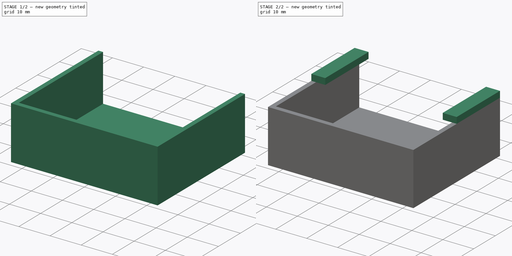
[diagram: build sequence overview — one tinted view per stage of 2, left to right]
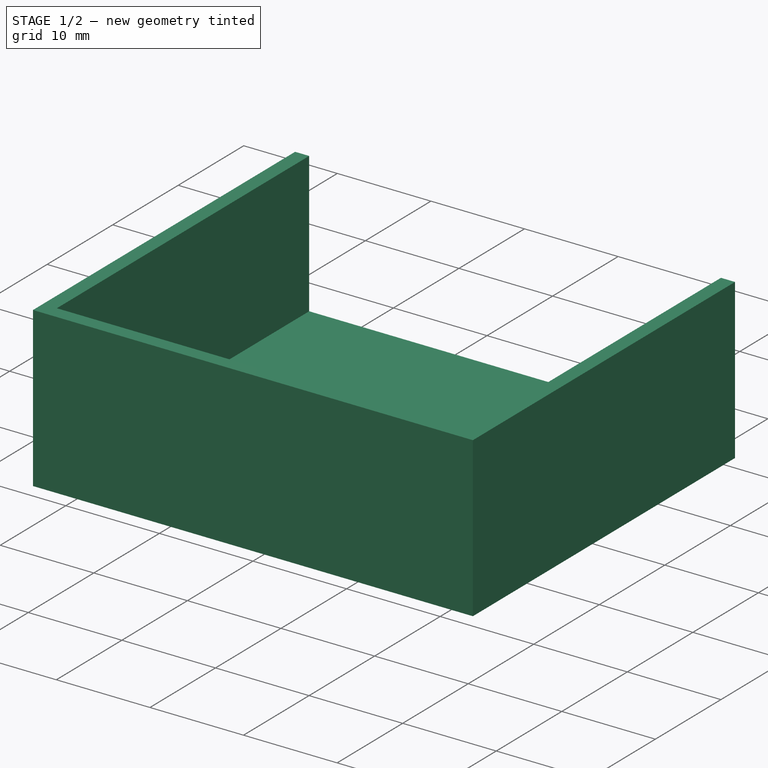
[diagram: stage 1 of 2 — iso view after this stage's code; geometry added in this stage tinted green]
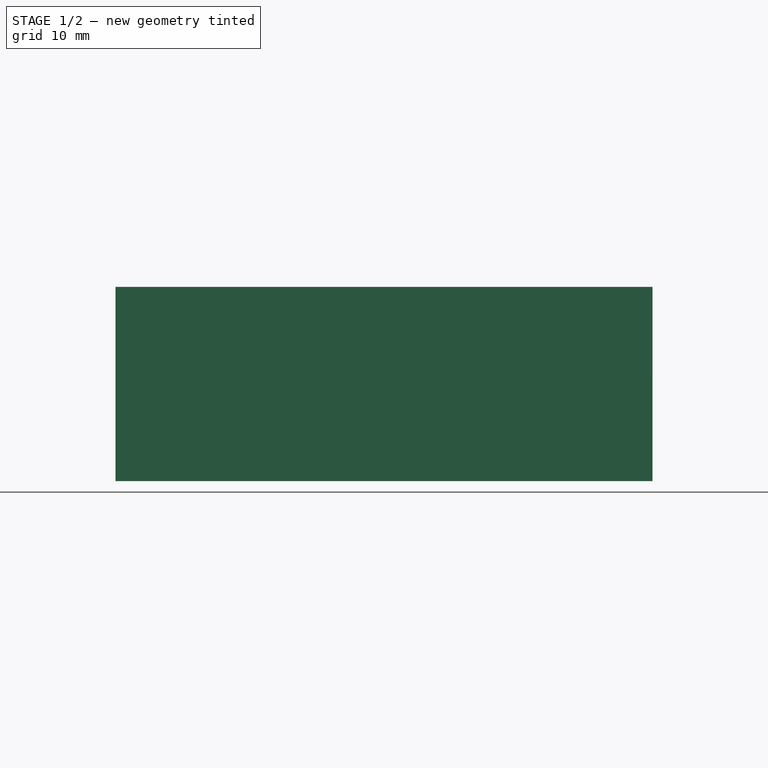
[diagram: stage 1 of 2 — front view after this stage's code; geometry added in this stage tinted green]
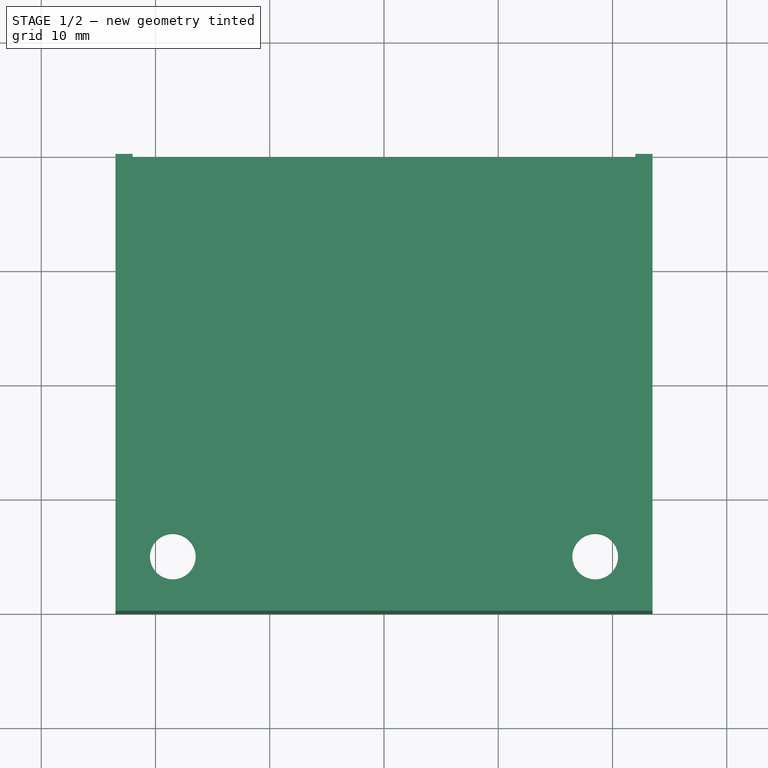
[diagram: stage 1 of 2 — top view after this stage's code; geometry added in this stage tinted green]
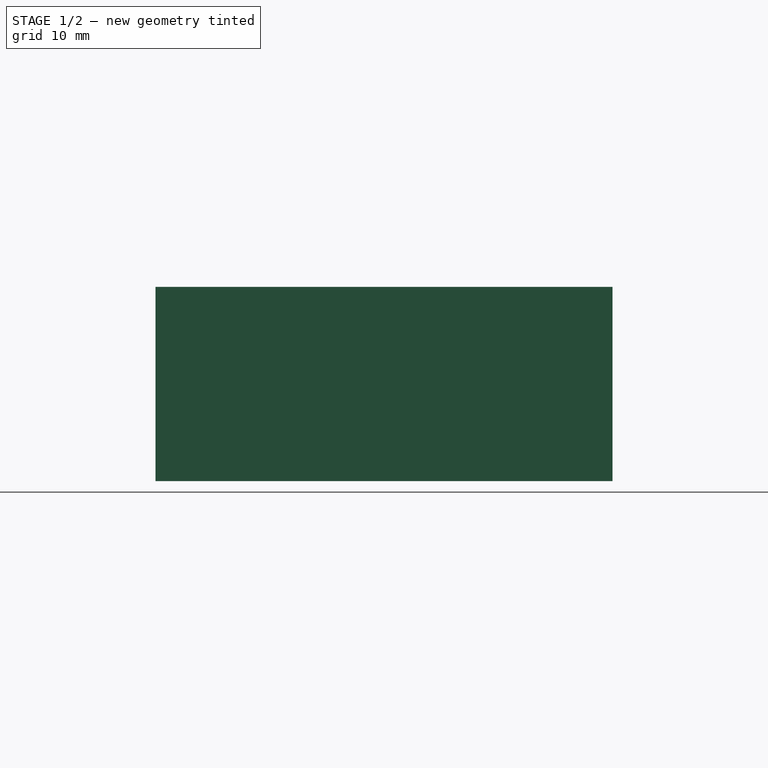
[diagram: stage 1 of 2 — right view after this stage's code; geometry added in this stage tinted green]
FCSTD DOCUMENT  (FreeCAD 0.20R29603 (Git))
Label: shelly mount
License: All rights reserved
LicenseURL: http://en.wikipedia.org/wiki/All_rights_reserved
objects: Sketcher::SketchObject×3, PartDesign::Pad×3, PartDesign::Body×1
note: 10 computed .brp shape members not serialized (recipe doc carries the construction recipe); baked Part::Feature solids carry a one-line shape summary decoded from their .brp

FEATURE [Sketcher::SketchObject] Sketch  label="Baseplate"
  FullyConstrained = true
  sketch-geometry (16):
    g0: LineSegment StartX=-23.5 StartY=20 StartZ=0 EndX=23.5 EndY=20 EndZ=0
    g1: LineSegment StartX=23.5 StartY=20 StartZ=0 EndX=23.5 EndY=-20 EndZ=0
    g2: LineSegment StartX=23.5 StartY=-20 StartZ=0 EndX=-23.5 EndY=-20 EndZ=0
    g3: LineSegment StartX=-23.5 StartY=-20 StartZ=0 EndX=-23.5 EndY=20 EndZ=0
    g4: LineSegment StartX=-22 StartY=18.5 StartZ=0 EndX=22 EndY=18.5 EndZ=0
    g5: LineSegment StartX=22 StartY=18.5 StartZ=0 EndX=22 EndY=-18.5 EndZ=0
    g6: LineSegment StartX=22 StartY=-18.5 StartZ=0 EndX=-22 EndY=-18.5 EndZ=0
    g7: LineSegment StartX=-22 StartY=-18.5 StartZ=0 EndX=-22 EndY=18.5 EndZ=0
    g8: GeomPoint X=-10 Y=-18.5 Z=0
    g9: GeomPoint X=-22 Y=-6.5 Z=0
    g10: LineSegment StartX=-22 StartY=-6.5 StartZ=0 EndX=-10 EndY=-18.5 EndZ=0
    g11: LineSegment StartX=-22 StartY=-18.5 StartZ=0 EndX=-16 EndY=-12.5 EndZ=0
    g12: Circle CenterX=-18.4853 CenterY=-14.9853 CenterZ=0 NormalX=0 NormalY=0 NormalZ=1 AngleXU=0 Radius=3.51472
    g13: Circle CenterX=18.4853 CenterY=-14.9853 CenterZ=0 NormalX=0 NormalY=0 NormalZ=1 AngleXU=0 Radius=3.51472
    g14: Circle CenterX=-18.4853 CenterY=-14.9853 CenterZ=0 NormalX=0 NormalY=0 NormalZ=1 AngleXU=0 Radius=2
    g15: Circle CenterX=18.4853 CenterY=-14.9853 CenterZ=0 NormalX=0 NormalY=0 NormalZ=1 AngleXU=0 Radius=2
  constraints (38):
    c: Coincident(g0,g1)
    c: Coincident(g1,g2)
    c: Coincident(g2,g3)
    c: Coincident(g3,g0)
    c: Horizontal(g2)
    c: Vertical(g1)
    c: Symmetric(g0,g0,g-2)
    c: DistanceX(g0,g0) = 47
    c: DistanceY(g2,g0) = 40
    c: Symmetric(g0,g2,g-1)
    c: Coincident(g4,g5)
    c: Coincident(g5,g6)
    c: Coincident(g6,g7)
    c: Coincident(g7,g4)
    c: Horizontal(g6)
    c: Vertical(g5)
    c: DistanceX(g0,g4) = 1.5
    c: DistanceY(g4,g0) = 1.5
    c: Symmetric(g6,g4,g-1)
    c: Symmetric(g4,g4,g-2)
    c: PointOnObject(g8,g6)
    c: PointOnObject(g9,g7)
    c: Coincident(g10,g9)
    c: Coincident(g10,g8)
    c: Coincident(g11,g6)
    c: PointOnObject(g11,g10)
    c: Angle(g6,g11) = 0.785398
    c: Tangent(g10,g12)
    c: Tangent(g12,g7)
    c: Tangent(g12,g6)
    c: Symmetric(g12,g13,g-2)
    c: Equal(g12,g13)
    c: DistanceY(g9,g4) = 25
    c: DistanceX(g8,g-1) = 10
    c: Coincident(g14,g12)
    c: Diameter(g14) = 4
    c: Coincident(g15,g13)
    c: Equal(g14,g15)
FEATURE [PartDesign::Pad] Pad  label="Baseplate001"
  Direction = (0,0,1)
  Length = 2
  Length2 = 10
  Profile = -> Sketch
  ReferenceAxis = -> Sketch [N_Axis]
  Type = 0
FEATURE [Sketcher::SketchObject] Sketch001  label="walls"
  ExternalGeometry = -> [Pad]
  FullyConstrained = true
  MapMode = 5
  Placement = pos=(0,0,2) rot=(0,0,1;0rad)
  Support = -> [Pad]
  sketch-geometry (17):
    g0: LineSegment StartX=-23.5 StartY=-20 StartZ=0 EndX=23.5 EndY=-20 EndZ=0
    g1: LineSegment StartX=23.5 StartY=-20 StartZ=0 EndX=23.5 EndY=-18.5 EndZ=0
    g2: LineSegment StartX=23.5 StartY=-18.5 StartZ=0 EndX=-23.5 EndY=-18.5 EndZ=0
    g3: LineSegment StartX=-23.5 StartY=-18.5 StartZ=0 EndX=-23.5 EndY=-20 EndZ=0
    g4: LineSegment StartX=-23.5 StartY=-20 StartZ=0 EndX=-22 EndY=-20 EndZ=0
    g5: LineSegment StartX=-22 StartY=-20 StartZ=0 EndX=-22 EndY=20 EndZ=0
    g6: LineSegment StartX=-22 StartY=20 StartZ=0 EndX=-23.5 EndY=20 EndZ=0
    g7: LineSegment StartX=-23.5 StartY=20 StartZ=0 EndX=-23.5 EndY=-20 EndZ=0
    g8: LineSegment StartX=23.5 StartY=-20 StartZ=0 EndX=22 EndY=-20 EndZ=0
    g9: LineSegment StartX=22 StartY=-20 StartZ=0 EndX=22 EndY=20 EndZ=0
    g10: LineSegment StartX=22 StartY=20 StartZ=0 EndX=23.5 EndY=20 EndZ=0
    g11: LineSegment StartX=23.5 StartY=20 StartZ=0 EndX=23.5 EndY=-20 EndZ=0
    g12: GeomPoint X=-22 Y=-18.5 Z=0
    g13: GeomPoint X=22 Y=-18.5 Z=0
    g14: LineSegment StartX=22 StartY=20 StartZ=0 EndX=22 EndY=-18.5 EndZ=0
    g15: LineSegment StartX=22 StartY=-18.5 StartZ=0 EndX=-22 EndY=-18.5 EndZ=0
    g16: LineSegment StartX=-22 StartY=-18.5 StartZ=0 EndX=-22 EndY=20 EndZ=0
  constraints (43):
    c: Coincident(g0,g1)
    c: Coincident(g1,g2)
    c: Coincident(g2,g3)
    c: Coincident(g3,g0)
    c: Horizontal(g0)
    c: Horizontal(g2)
    c: Vertical(g1)
    c: Vertical(g3)
    c: Coincident(g0,g-6)
    c: PointOnObject(g1,g-5)
    c: DistanceY(g0,g1) = 1.5
    c: Coincident(g4,g5)
    c: Coincident(g5,g6)
    c: Coincident(g6,g7)
    c: Coincident(g7,g4)
    c: Horizontal(g4)
    c: Horizontal(g6)
    c: Vertical(g5)
    c: Vertical(g7)
    c: Coincident(g4,g0)
    c: PointOnObject(g5,g-4)
    c: Coincident(g8,g9)
    c: Coincident(g9,g10)
    c: Coincident(g10,g11)
    c: Coincident(g11,g8)
    c: Horizontal(g8)
    c: Horizontal(g10)
    c: Vertical(g9)
    c: Vertical(g11)
    c: Coincident(g8,g0)
    c: PointOnObject(g9,g-4)
    c: Equal(g6,g1)
    c: Equal(g10,g1)
    c: PointOnObject(g12,g2)
    c: PointOnObject(g12,g5)
    c: PointOnObject(g13,g2)
    c: PointOnObject(g13,g9)
    c: Coincident(g14,g10)
    c: Coincident(g14,g13)
    c: Coincident(g15,g14)
    c: Coincident(g15,g12)
    c: Coincident(g16,g15)
    c: Coincident(g16,g6)
FEATURE [PartDesign::Pad] Pad001  label="Walls"
  BaseFeature = -> Pad
  Direction = (0,0,1)
  Length = 15
  Length2 = 10
  Profile = -> Sketch001
  ReferenceAxis = -> Sketch001 [N_Axis]
  Type = 0
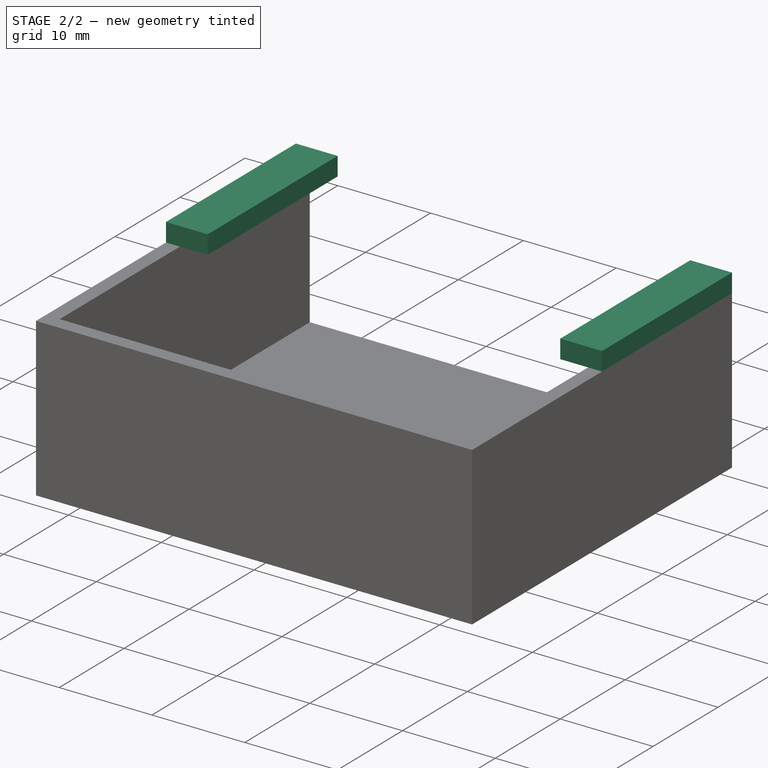
[diagram: stage 2 of 2 — iso view after this stage's code; geometry added in this stage tinted green]
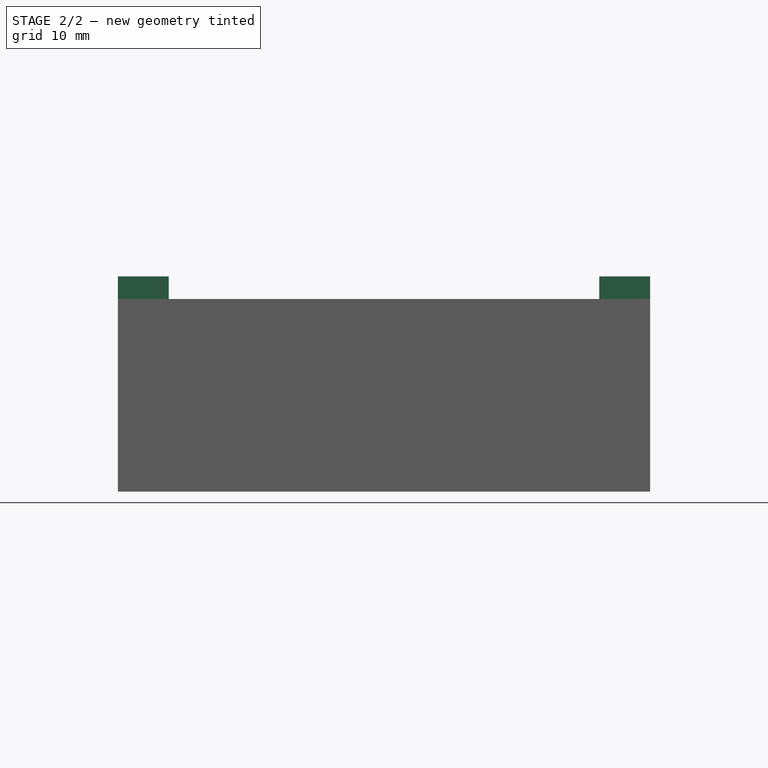
[diagram: stage 2 of 2 — front view after this stage's code; geometry added in this stage tinted green]
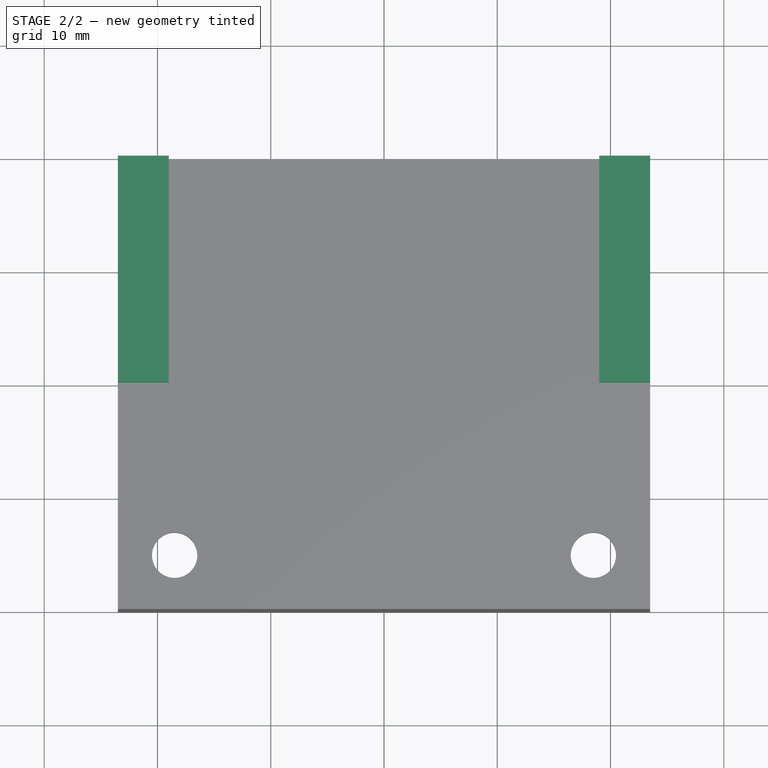
[diagram: stage 2 of 2 — top view after this stage's code; geometry added in this stage tinted green]
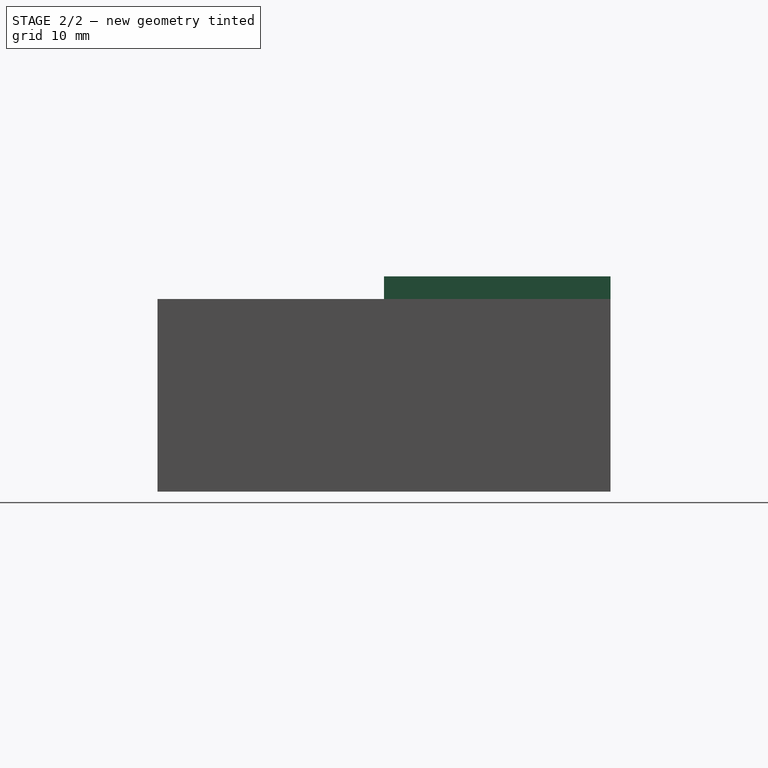
[diagram: stage 2 of 2 — right view after this stage's code; geometry added in this stage tinted green]
FEATURE [Sketcher::SketchObject] Sketch002  label="retainer"
  ExternalGeometry = -> [Pad001]
  FullyConstrained = false
  MapMode = 5
  Placement = pos=(0,0,17) rot=(0,0,1;0rad)
  Support = -> [Pad001]
  sketch-geometry (8):
    g0: LineSegment StartX=-23.5 StartY=20 StartZ=0 EndX=-19 EndY=20 EndZ=0
    g1: LineSegment StartX=-19 StartY=20 StartZ=0 EndX=-19 EndY=0 EndZ=0
    g2: LineSegment StartX=-19 StartY=0 StartZ=0 EndX=-23.5 EndY=0 EndZ=0
    g3: LineSegment StartX=-23.5 StartY=0 StartZ=0 EndX=-23.5 EndY=20 EndZ=0
    g4: LineSegment StartX=23.5 StartY=20 StartZ=0 EndX=19 EndY=20 EndZ=0
    g5: LineSegment StartX=19 StartY=20 StartZ=0 EndX=19 EndY=0 EndZ=0
    g6: LineSegment StartX=19 StartY=0 StartZ=0 EndX=23.5 EndY=0 EndZ=0
    g7: LineSegment StartX=23.5 StartY=0 StartZ=0 EndX=23.5 EndY=20 EndZ=0
  constraints (19):
    c: Coincident(g0,g1)
    c: Coincident(g1,g2)
    c: Coincident(g2,g3)
    c: Coincident(g3,g0)
    c: Horizontal(g0)
    c: Horizontal(g2)
    c: Vertical(g1)
    c: Vertical(g3)
    c: PointOnObject(g1,g-1)
    c: Coincident(g4,g5)
    c: Coincident(g5,g6)
    c: Coincident(g6,g7)
    c: Coincident(g7,g4)
    c: Horizontal(g4)
    c: Horizontal(g6)
    c: Vertical(g5)
    c: Vertical(g7)
    c: Symmetric(g1,g5,g-2)
    c: DistanceX(g0,g0) = 4.5
FEATURE [PartDesign::Pad] Pad002  label="retainer001"
  BaseFeature = -> Pad001
  Direction = (0,0,1)
  Length = 2
  Length2 = 10
  Profile = -> Sketch002
  ReferenceAxis = -> Sketch002 [N_Axis]
  Type = 0
FEATURE [PartDesign::Body] Body
  Group = -> [Sketch,Pad,Sketch001,Pad001,Sketch002,Pad002]
  Origin = -> Origin
  Tip = -> Pad002
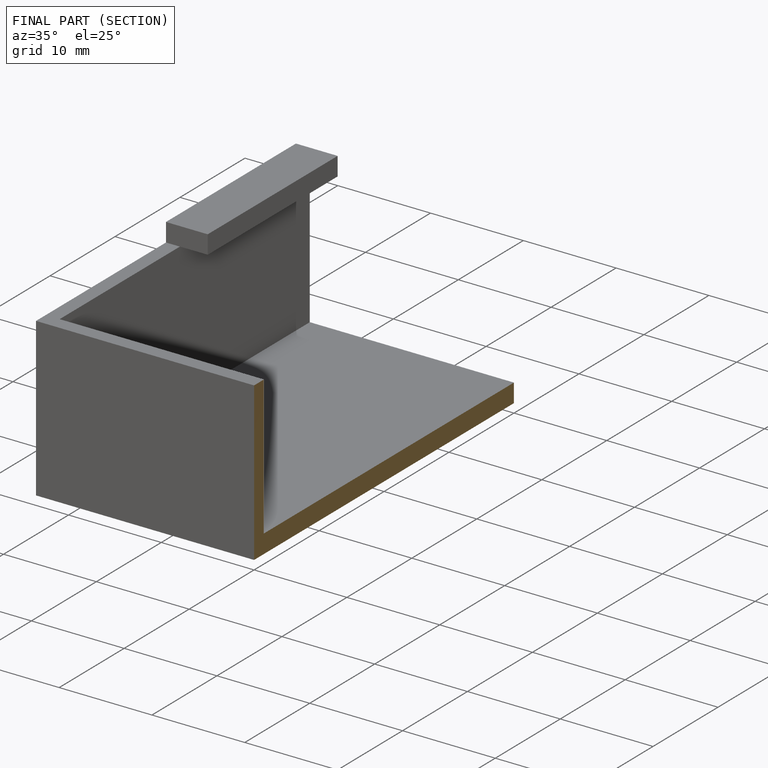
[diagram: finished part — half-section view (interior)]
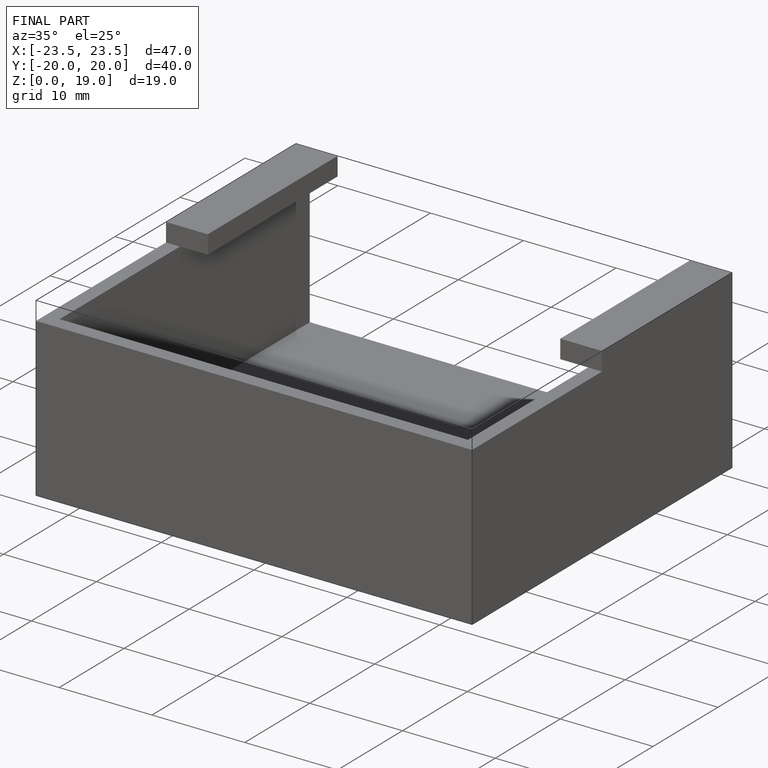
[diagram: finished part — iso view with bounding-box wireframe]
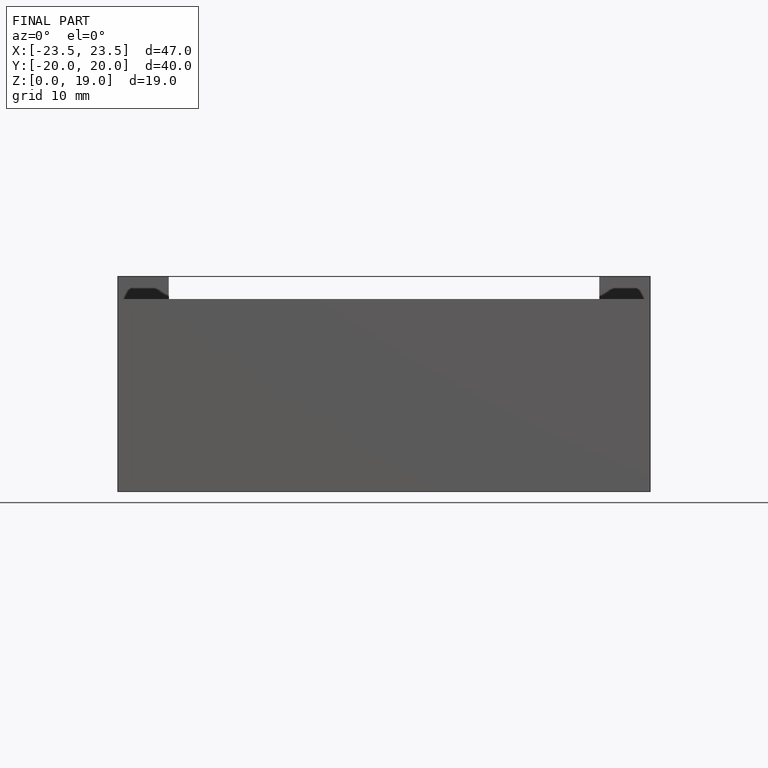
[diagram: finished part — front view with bounding-box wireframe]
